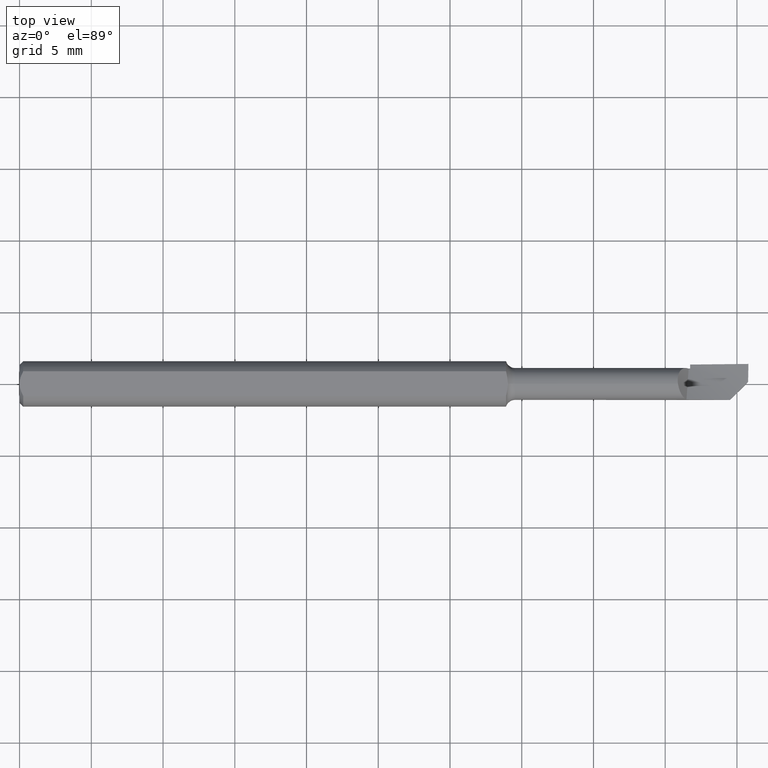
[diagram: clean part render]
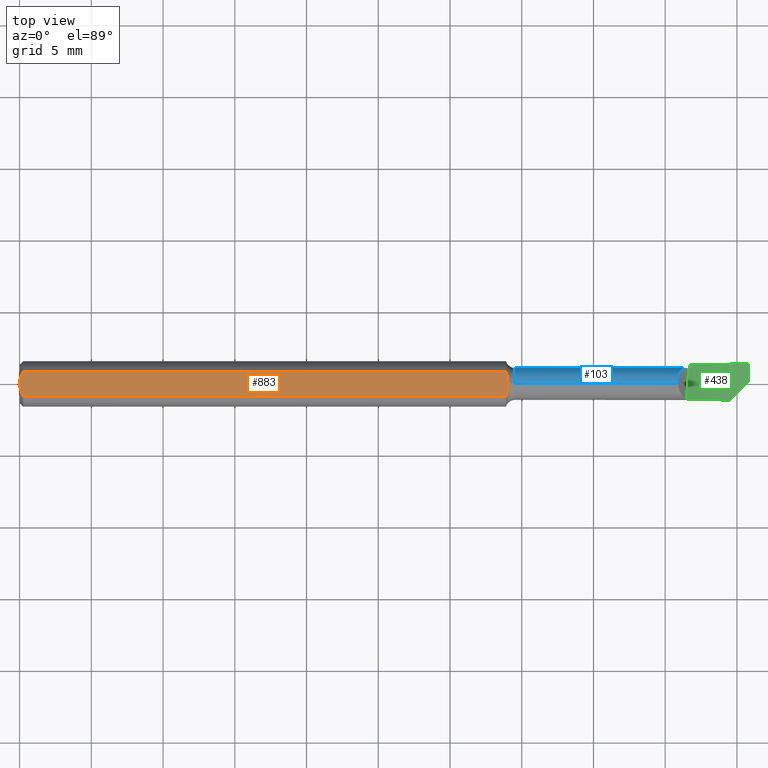
[diagram: same view with three faces highlighted in distinct colors, each labeled with its STEP entity id]
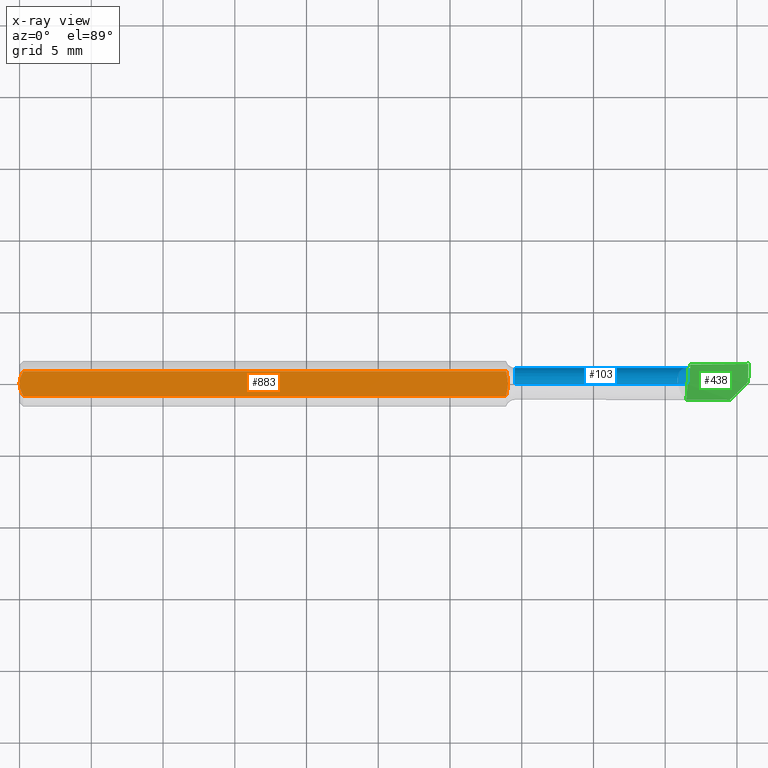
[diagram: x-ray of the same camera — body ghosted, the three highlighted faces saturated]
A machine part, top view with three faces highlighted in distinct colors.
The next image is the same camera in x-ray (body ghosted, the three faces saturated) — at least one of them is partly hidden behind the body in this view.
Their STEP definitions:

[orange] entity #883 — the highlighted planar face has unit normal (0, -0, 1).
#35 = CARTESIAN_POINT ( 'NONE',  ( 1.340190283510156455, 0.005749009410481263800, 0.05235000000000000070 ) ) ;
#37 = DIRECTION ( 'NONE',  ( 0.000000000000000000, -1.036675771730518732E-16, 1.000000000000000000 ) ) ;
#58 = B_SPLINE_CURVE_WITH_KNOTS ( 'NONE', 3,
 ( #439, #850, #526, #722, #592, #798 ),
 .UNSPECIFIED., .F., .F.,
 ( 4, 2, 4 ),
 ( 0.001820301466808375672, 0.002269751589838322255, 0.002719201712868268839 ),
 .UNSPECIFIED. ) ;
#59 = CARTESIAN_POINT ( 'NONE',  ( 1.337185933975787222, -0.02264023244491575673, 0.05234999999999998682 ) ) ;
#71 = ORIENTED_EDGE ( 'NONE', *, *, #487, .T. ) ;
#78 = ORIENTED_EDGE ( 'NONE', *, *, #307, .T. ) ;
#90 = VECTOR ( 'NONE', #217, 39.37007874015748143 ) ;
#102 = CARTESIAN_POINT ( 'NONE',  ( 1.334999999999999742, 0.03386738844375221380, 0.05234999999999997988 ) ) ;
#108 = CARTESIAN_POINT ( 'NONE',  ( 0.001063697276021675735, 0.01189177144351694949, 0.05234999999999998682 ) ) ;
#110 = VERTEX_POINT ( 'NONE', #744 ) ;
#128 = ORIENTED_EDGE ( 'NONE', *, *, #785, .T. ) ;
#137 = VERTEX_POINT ( 'NONE', #215 ) ;
#141 = PLANE ( 'NONE',  #206 ) ;
#162 = CARTESIAN_POINT ( 'NONE',  ( 1.340038537032256061, 0.007172298666276839818, 0.05234999999999997988 ) ) ;
#166 = LINE ( 'NONE', #251, #807 ) ;
#167 = CARTESIAN_POINT ( 'NONE',  ( 1.337186447480338103, 0.02263794260115008228, 0.05234999999999998682 ) ) ;
#184 = CARTESIAN_POINT ( 'NONE',  ( 0.004671770759546989976, 0.02323517832780104542, 0.05234999999999997988 ) ) ;
#192 = CARTESIAN_POINT ( 'NONE',  ( 1.340450532190047950, 0.000000000000000000, 0.05234999999999997988 ) ) ;
#206 = AXIS2_PLACEMENT_3D ( 'NONE', #761, #37, #525 ) ;
#212 = ORIENTED_EDGE ( 'NONE', *, *, #494, .T. ) ;
#213 = CARTESIAN_POINT ( 'NONE',  ( 1.334999999999999742, -0.03386738844375224156, 0.05234999999999997988 ) ) ;
#215 = CARTESIAN_POINT ( 'NONE',  ( 0.000000000000000000, -5.426997665009263557E-18, 0.05234999999999997988 ) ) ;
#217 = DIRECTION ( 'NONE',  ( -1.000000000000000000, -0.000000000000000000, -0.000000000000000000 ) ) ;
#224 = EDGE_CURVE ( 'NONE', #477, #110, #413, .T. ) ;
#226 = ORIENTED_EDGE ( 'NONE', *, *, #224, .F. ) ;
#251 = CARTESIAN_POINT ( 'NONE',  ( 0.000000000000000000, -0.03386738844375224156, 0.05234999999999997988 ) ) ;
#299 = CARTESIAN_POINT ( 'NONE',  ( 1.340450532190032629, 0.001376315575991609577, 0.05234999999999997988 ) ) ;
#304 = B_SPLINE_CURVE_WITH_KNOTS ( 'NONE', 3,
 ( #454, #602, #184, #108, #381, #865 ),
 .UNSPECIFIED., .F., .F.,
 ( 4, 2, 4 ),
 ( 0.0009229516234080532410, 0.001371626545108214565, 0.001820301466808375672 ),
 .UNSPECIFIED. ) ;
#307 = EDGE_CURVE ( 'NONE', #760, #137, #304, .T. ) ;
#314 = CARTESIAN_POINT ( 'NONE',  ( 1.340450532190031963, -0.005791053852450436627, 0.05234999999999997988 ) ) ;
#332 = CARTESIAN_POINT ( 'NONE',  ( 1.335845432516844289, -0.02822689702829193209, 0.05234999999999998682 ) ) ;
#377 = CARTESIAN_POINT ( 'NONE',  ( 1.335846881951975096, 0.02821722679885636104, 0.05235000000000000070 ) ) ;
#381 = CARTESIAN_POINT ( 'NONE',  ( -7.517250668112770884E-16, 0.005954997531773991229, 0.05234999999999998682 ) ) ;
#413 = B_SPLINE_CURVE_WITH_KNOTS ( 'NONE', 3,
 ( #102, #377, #167, #656, #518, #162, #35, #577, #299, #646 ),
 .UNSPECIFIED., .F., .F.,
 ( 4, 2, 2, 2, 4 ),
 ( 0.008280936228480533998, 0.008695135893795868584, 0.008902235726453534143, 0.009005785642782369524, 0.009109335559111203171 ),
 .UNSPECIFIED. ) ;
#420 = EDGE_CURVE ( 'NONE', #110, #867, #553, .T. ) ;
#439 = CARTESIAN_POINT ( 'NONE',  ( 0.000000000000000000, -5.426997665009263557E-18, 0.05234999999999997988 ) ) ;
#453 = CARTESIAN_POINT ( 'NONE',  ( 1.334999999999999742, 0.03386738844375221380, 0.05234999999999997988 ) ) ;
#454 = CARTESIAN_POINT ( 'NONE',  ( 0.01000000000000000021, 0.03386738844375223462, 0.05234999999999997988 ) ) ;
#467 = CARTESIAN_POINT ( 'NONE',  ( 1.339517550985716454, -0.01143235994865893397, 0.05234999999999997988 ) ) ;
#477 = VERTEX_POINT ( 'NONE', #453 ) ;
#486 = FACE_OUTER_BOUND ( 'NONE', #735, .T. ) ;
#487 = EDGE_CURVE ( 'NONE', #659, #867, #166, .T. ) ;
#489 = ORIENTED_EDGE ( 'NONE', *, *, #420, .F. ) ;
#494 = EDGE_CURVE ( 'NONE', #137, #659, #58, .T. ) ;
#508 = DIRECTION ( 'NONE',  ( 1.000000000000000000, 0.000000000000000000, 0.000000000000000000 ) ) ;
#518 = CARTESIAN_POINT ( 'NONE',  ( 1.339468223878736097, 0.01142363037413706393, 0.05234999999999997294 ) ) ;
#525 = DIRECTION ( 'NONE',  ( 0.000000000000000000, -1.000000000000000000, -1.036675771730518732E-16 ) ) ;
#526 = CARTESIAN_POINT ( 'NONE',  ( 0.001055043921633255690, -0.01186408073210960291, 0.05234999999999997988 ) ) ;
#553 = B_SPLINE_CURVE_WITH_KNOTS ( 'NONE', 3,
 ( #192, #314, #467, #59, #332, #802 ),
 .UNSPECIFIED., .F., .F.,
 ( 4, 2, 4 ),
 ( 6.229917496691179362E-17, 0.0004357017767854964212, 0.0008714035535709306092 ),
 .UNSPECIFIED. ) ;
#577 = CARTESIAN_POINT ( 'NONE',  ( 1.340396369055754766, 0.002886740526173730507, 0.05234999999999998682 ) ) ;
#592 = CARTESIAN_POINT ( 'NONE',  ( 0.007163450771350561574, -0.02864528976618616399, 0.05234999999999998682 ) ) ;
#602 = CARTESIAN_POINT ( 'NONE',  ( 0.007185421074056372141, 0.02868573718286561436, 0.05234999999999997988 ) ) ;
#646 = CARTESIAN_POINT ( 'NONE',  ( 1.340450532190047950, 0.000000000000000000, 0.05234999999999997988 ) ) ;
#656 = CARTESIAN_POINT ( 'NONE',  ( 1.338934866503850074, 0.01423318235558844111, 0.05234999999999997294 ) ) ;
#659 = VERTEX_POINT ( 'NONE', #736 ) ;
#706 = LINE ( 'NONE', #766, #90 ) ;
#722 = CARTESIAN_POINT ( 'NONE',  ( 0.004679365186781223734, -0.02325953974079656220, 0.05234999999999998682 ) ) ;
#735 = EDGE_LOOP ( 'NONE', ( #78, #212, #71, #489, #226, #128 ) ) ;
#736 = CARTESIAN_POINT ( 'NONE',  ( 0.01000000000000000021, -0.03386738844375224156, 0.05234999999999997988 ) ) ;
#744 = CARTESIAN_POINT ( 'NONE',  ( 1.340450532190047950, 0.000000000000000000, 0.05234999999999997988 ) ) ;
#760 = VERTEX_POINT ( 'NONE', #771 ) ;
#761 = CARTESIAN_POINT ( 'NONE',  ( 2.000787401574803059, 0.08234999999999999265, 0.05234999999999998682 ) ) ;
#766 = CARTESIAN_POINT ( 'NONE',  ( 0.000000000000000000, 0.03386738844375223462, 0.05234999999999997988 ) ) ;
#771 = CARTESIAN_POINT ( 'NONE',  ( 0.01000000000000000021, 0.03386738844375223462, 0.05234999999999997988 ) ) ;
#785 = EDGE_CURVE ( 'NONE', #477, #760, #706, .T. ) ;
#798 = CARTESIAN_POINT ( 'NONE',  ( 0.01000000000000000021, -0.03386738844375224156, 0.05234999999999997988 ) ) ;
#802 = CARTESIAN_POINT ( 'NONE',  ( 1.334999999999999742, -0.03386738844375224156, 0.05234999999999997988 ) ) ;
#807 = VECTOR ( 'NONE', #508, 39.37007874015748143 ) ;
#850 = CARTESIAN_POINT ( 'NONE',  ( -7.326168038673117461E-16, -0.005965286321680246008, 0.05234999999999997988 ) ) ;
#865 = CARTESIAN_POINT ( 'NONE',  ( 0.000000000000000000, -5.426997665009263557E-18, 0.05234999999999997988 ) ) ;
#867 = VERTEX_POINT ( 'NONE', #213 ) ;
#883 = ADVANCED_FACE ( 'NONE', ( #486 ), #141, .T. ) ;

[blue] entity #103 — the highlighted cylindrical surface (edge-blend (fillet) strip) has radius 1.1176 mm, axis along (-1, -0, -0).
#11 = CARTESIAN_POINT ( 'NONE',  ( 1.832649644870427030, 0.04381148599927516679, -0.006534799547832522391 ) ) ;
#14 = VERTEX_POINT ( 'NONE', #333 ) ;
#15 = CARTESIAN_POINT ( 'NONE',  ( 1.825184145557343873, 0.04368982805595991725, 0.005228637563037610847 ) ) ;
#40 = CARTESIAN_POINT ( 'NONE',  ( 1.840000000000000524, 0.04254520125568710814, -0.01122077760732640046 ) ) ;
#42 = EDGE_CURVE ( 'NONE', #531, #705, #712, .T. ) ;
#45 = CARTESIAN_POINT ( 'NONE',  ( 1.359099325716708107, 0.000000000000000000, 0.000000000000000000 ) ) ;
#49 = CIRCLE ( 'NONE', #550, 0.04399999999999996275 ) ;
#53 = CARTESIAN_POINT ( 'NONE',  ( 1.806503301658712202, 0.001021434485236766884, 0.04399108489073413897 ) ) ;
#72 = CARTESIAN_POINT ( 'NONE',  ( 1.822515809671329201, 0.04298960608165732639, 0.009481030022679172442 ) ) ;
#73 = AXIS2_PLACEMENT_3D ( 'NONE', #611, #329, #194 ) ;
#80 = EDGE_CURVE ( 'NONE', #378, #770, #680, .T. ) ;
#83 = CARTESIAN_POINT ( 'NONE',  ( 1.811257268910976936, 0.03336280251003857777, 0.02883926787080794488 ) ) ;
#98 = CARTESIAN_POINT ( 'NONE',  ( 1.806000000000000272, 0.01202158822878221338, 0.04206744494045958072 ) ) ;
#103 = ADVANCED_FACE ( 'NONE', ( #261 ), #267, .T. ) ;
#114 = CARTESIAN_POINT ( 'NONE',  ( 1.806000000000000050, 0.006042410246203819280, 0.04358313066332623192 ) ) ;
#119 = DIRECTION ( 'NONE',  ( -1.000000000000000000, -0.000000000000000000, -0.000000000000000000 ) ) ;
#143 = VERTEX_POINT ( 'NONE', #762 ) ;
#144 = CARTESIAN_POINT ( 'NONE',  ( 1.816472062690037470, 0.03947281274095175430, 0.01944051067236420710 ) ) ;
#145 = EDGE_CURVE ( 'NONE', #531, #770, #49, .T. ) ;
#146 = B_SPLINE_CURVE_WITH_KNOTS ( 'NONE', 3,
 ( #301, #98, #855, #114 ),
 .UNSPECIFIED., .F., .F.,
 ( 4, 4 ),
 ( 0.000000000000000000, 1.000000000000000000 ),
 .UNSPECIFIED. ) ;
#153 =( BOUNDED_CURVE ( )  B_SPLINE_CURVE ( 2, ( #534, #396, #40 ),
 .UNSPECIFIED., .F., .T. ) 
 B_SPLINE_CURVE_WITH_KNOTS ( ( 3, 3 ),
 ( 0.6960896133483621684, 0.7035278658483815617 ),
 .UNSPECIFIED. ) 
 CURVE ( )  GEOMETRIC_REPRESENTATION_ITEM ( )  RATIONAL_B_SPLINE_CURVE ( ( 0.9800704407896163595, 0.9800094700550632254, 0.9799569117201770707 ) ) 
 REPRESENTATION_ITEM ( '' )  );
#155 = CARTESIAN_POINT ( 'NONE',  ( 1.824487569580132584, 0.04355296984319946552, 0.006331378749687262275 ) ) ;
#160 = CARTESIAN_POINT ( 'NONE',  ( 1.825654579184348592, 0.04377235494399921850, 0.004485606868808031215 ) ) ;
#181 = CARTESIAN_POINT ( 'NONE',  ( 1.840000000000000524, 0.01304774452694784474, -0.04202090387842107727 ) ) ;
#183 = DIRECTION ( 'NONE',  ( -1.000000000000000000, -0.000000000000000000, -0.000000000000000000 ) ) ;
#194 = DIRECTION ( 'NONE',  ( 0.000000000000000000, 0.000000000000000000, 1.000000000000000000 ) ) ;
#216 = ORIENTED_EDGE ( 'NONE', *, *, #328, .F. ) ;
#222 = CARTESIAN_POINT ( 'NONE',  ( 1.835957477719311948, 0.04247873417013275921, -0.01146983623698223133 ) ) ;
#227 = CARTESIAN_POINT ( 'NONE',  ( 1.821695935261249844, 0.04267307383296666673, 0.01080308965078180874 ) ) ;
#247 = CARTESIAN_POINT ( 'NONE',  ( 1.840000000000000080, 0.000000000000000000, 0.000000000000000000 ) ) ;
#261 = FACE_OUTER_BOUND ( 'NONE', #578, .T. ) ;
#267 = CYLINDRICAL_SURFACE ( 'NONE', #73, 0.04399999999999996275 ) ;
#275 = DIRECTION ( 'NONE',  ( 1.000000000000000000, 0.000000000000000000, 0.000000000000000000 ) ) ;
#278 = AXIS2_PLACEMENT_3D ( 'NONE', #681, #183, #456 ) ;
#280 = EDGE_CURVE ( 'NONE', #558, #14, #146, .T. ) ;
#282 = B_SPLINE_CURVE_WITH_KNOTS ( 'NONE', 3,
 ( #832, #757, #351, #342, #83, #287, #691, #297, #418, #628, #144, #551, #623, #776, #292, #227, #72, #503, #155, #15, #160, #564, #433, #11, #222 ),
 .UNSPECIFIED., .F., .F.,
 ( 4, 2, 2, 2, 1, 1, 2, 2, 2, 2, 1, 2, 2, 4 ),
 ( 0.000000000000000000, 0.2500000000000549560, 0.3750000000000806022, 0.4375000000000955347, 0.4687500000001030287, 0.4843750000001090794, 0.4921875000001097455, 0.5000000000001104672, 0.6250000000001015854, 0.6875000000000942579, 0.7187500000000879297, 0.7343750000000847100, 0.7500000000000814904, 1.000000000000000000 ),
 .UNSPECIFIED. ) ;
#284 = CARTESIAN_POINT ( 'NONE',  ( 1.840000000000000080, 0.02851814440934258288, -0.03350694613729936211 ) ) ;
#287 = CARTESIAN_POINT ( 'NONE',  ( 1.813160508245734714, 0.03603691170435705665, 0.02528904872616571931 ) ) ;
#292 = CARTESIAN_POINT ( 'NONE',  ( 1.819381503443730397, 0.04160192991899874099, 0.01456266913863462319 ) ) ;
#297 = CARTESIAN_POINT ( 'NONE',  ( 1.814927803091667124, 0.03804389189905826169, 0.02211851865691565402 ) ) ;
#301 = CARTESIAN_POINT ( 'NONE',  ( 1.806000000000000050, 0.01502352246879054901, 0.04135569818815470339 ) ) ;
#308 = ORIENTED_EDGE ( 'NONE', *, *, #400, .T. ) ;
#319 = AXIS2_PLACEMENT_3D ( 'NONE', #247, #800, #397 ) ;
#323 = CARTESIAN_POINT ( 'NONE',  ( 0.000000000000000000, 5.388445916248349113E-18, -0.04399999999999996275 ) ) ;
#328 = EDGE_CURVE ( 'NONE', #664, #437, #694, .T. ) ;
#329 = DIRECTION ( 'NONE',  ( -1.000000000000000000, -0.000000000000000000, -0.000000000000000000 ) ) ;
#333 = CARTESIAN_POINT ( 'NONE',  ( 1.806000000000000050, 0.006042410246203819280, 0.04358313066332623192 ) ) ;
#334 = EDGE_CURVE ( 'NONE', #345, #664, #672, .T. ) ;
#335 = CARTESIAN_POINT ( 'NONE',  ( 1.359099325716708107, 0.000000000000000000, 0.04399999999999992806 ) ) ;
#342 = CARTESIAN_POINT ( 'NONE',  ( 1.810169704754772901, 0.03136967638997147784, 0.03098655298656198889 ) ) ;
#344 = B_SPLINE_CURVE_WITH_KNOTS ( 'NONE', 3,
 ( #684, #745, #53, #537, #402, #398, #810 ),
 .UNSPECIFIED., .F., .F.,
 ( 4, 2, 1, 4 ),
 ( 0.9133091907444047530, 0.9349818930583035925, 0.9566545953722023210, 1.000000000000000000 ),
 .UNSPECIFIED. ) ;
#345 = VERTEX_POINT ( 'NONE', #658 ) ;
#351 = CARTESIAN_POINT ( 'NONE',  ( 1.807450798487066690, 0.02493885775838036029, 0.03670075782472990295 ) ) ;
#356 = ORIENTED_EDGE ( 'NONE', *, *, #80, .T. ) ;
#362 = EDGE_CURVE ( 'NONE', #705, #437, #523, .T. ) ;
#378 = VERTEX_POINT ( 'NONE', #593 ) ;
#388 = ORIENTED_EDGE ( 'NONE', *, *, #280, .F. ) ;
#396 = CARTESIAN_POINT ( 'NONE',  ( 1.837978504615836339, 0.04251233249372542849, -0.01134540427239556955 ) ) ;
#397 = DIRECTION ( 'NONE',  ( 0.000000000000000000, 0.000000000000000000, 1.000000000000000000 ) ) ;
#398 = CARTESIAN_POINT ( 'NONE',  ( 1.806066406345927300, 0.005055551177186092329, 0.04371995081420762541 ) ) ;
#400 = EDGE_CURVE ( 'NONE', #143, #378, #153, .T. ) ;
#402 = CARTESIAN_POINT ( 'NONE',  ( 1.806196648552261141, 0.003557671217741856327, 0.04387635323605214299 ) ) ;
#415 = CARTESIAN_POINT ( 'NONE',  ( 1.840000000000000302, 0.000000000000000000, -0.04399999999999999745 ) ) ;
#418 = CARTESIAN_POINT ( 'NONE',  ( 1.815488579519248580, 0.03860551782770015039, 0.02113344978599027146 ) ) ;
#433 = CARTESIAN_POINT ( 'NONE',  ( 1.829375189563220871, 0.04427514283827316266, -0.001364418480959941199 ) ) ;
#437 = VERTEX_POINT ( 'NONE', #459 ) ;
#456 = DIRECTION ( 'NONE',  ( 0.000000000000000000, 0.000000000000000000, 1.000000000000000000 ) ) ;
#459 = CARTESIAN_POINT ( 'NONE',  ( 1.359099325716708107, 6.512059354466044426E-18, -0.04399999999999992806 ) ) ;
#481 = ORIENTED_EDGE ( 'NONE', *, *, #362, .T. ) ;
#503 = CARTESIAN_POINT ( 'NONE',  ( 1.823818216992804775, 0.04337937483282460621, 0.007397896961302856053 ) ) ;
#523 = LINE ( 'NONE', #323, #765 ) ;
#531 = VERTEX_POINT ( 'NONE', #181 ) ;
#534 = CARTESIAN_POINT ( 'NONE',  ( 1.835957477719311948, 0.04247873417013275921, -0.01146983623698223133 ) ) ;
#537 = CARTESIAN_POINT ( 'NONE',  ( 1.806374316927009005, 0.002038420778723301977, 0.04395570178031827507 ) ) ;
#550 = AXIS2_PLACEMENT_3D ( 'NONE', #617, #275, #693 ) ;
#551 = CARTESIAN_POINT ( 'NONE',  ( 1.816673149264879550, 0.03963991880519358857, 0.01909746679542105585 ) ) ;
#558 = VERTEX_POINT ( 'NONE', #730 ) ;
#563 = ORIENTED_EDGE ( 'NONE', *, *, #334, .F. ) ;
#564 = CARTESIAN_POINT ( 'NONE',  ( 1.825931518381612051, 0.04381444014808615062, 0.004049318782235674340 ) ) ;
#578 = EDGE_LOOP ( 'NONE', ( #779, #481, #216, #563, #605, #388, #844, #308, #356, #631 ) ) ;
#593 = CARTESIAN_POINT ( 'NONE',  ( 1.840000000000000524, 0.04254520125568710814, -0.01122077760732640046 ) ) ;
#598 = DIRECTION ( 'NONE',  ( -1.000000000000000000, -0.000000000000000000, -0.000000000000000000 ) ) ;
#603 = EDGE_CURVE ( 'NONE', #345, #14, #344, .T. ) ;
#605 = ORIENTED_EDGE ( 'NONE', *, *, #603, .T. ) ;
#607 = DIRECTION ( 'NONE',  ( -1.000000000000000000, -0.000000000000000000, -0.000000000000000000 ) ) ;
#611 = CARTESIAN_POINT ( 'NONE',  ( 0.000000000000000000, 0.000000000000000000, 0.000000000000000000 ) ) ;
#617 = CARTESIAN_POINT ( 'NONE',  ( 1.840000000000000080, 0.000000000000000000, 0.000000000000000000 ) ) ;
#623 = CARTESIAN_POINT ( 'NONE',  ( 1.816804123914292468, 0.03974618859559413825, 0.01887482012635703990 ) ) ;
#628 = CARTESIAN_POINT ( 'NONE',  ( 1.816172556992620812, 0.03921905190321879620, 0.01995294309135630176 ) ) ;
#631 = ORIENTED_EDGE ( 'NONE', *, *, #145, .F. ) ;
#654 = AXIS2_PLACEMENT_3D ( 'NONE', #45, #607, #727 ) ;
#658 = CARTESIAN_POINT ( 'NONE',  ( 1.806645572135293198, -1.605047027801943588E-06, 0.04400469612014611120 ) ) ;
#664 = VERTEX_POINT ( 'NONE', #335 ) ;
#672 = LINE ( 'NONE', #875, #874 ) ;
#680 = CIRCLE ( 'NONE', #319, 0.04399999999999999745 ) ;
#681 = CARTESIAN_POINT ( 'NONE',  ( 1.840000000000000080, 0.000000000000000000, 0.000000000000000000 ) ) ;
#684 = CARTESIAN_POINT ( 'NONE',  ( 1.806645572135293198, -1.605047027801943588E-06, 0.04400469612014611120 ) ) ;
#691 = CARTESIAN_POINT ( 'NONE',  ( 1.813840236874062484, 0.03687567909233643859, 0.02405100008509548221 ) ) ;
#693 = DIRECTION ( 'NONE',  ( 0.000000000000000000, 0.000000000000000000, 1.000000000000000000 ) ) ;
#694 = CIRCLE ( 'NONE', #654, 0.04399999999999992806 ) ;
#705 = VERTEX_POINT ( 'NONE', #415 ) ;
#712 = CIRCLE ( 'NONE', #278, 0.04399999999999999745 ) ;
#727 = DIRECTION ( 'NONE',  ( 0.000000000000000000, 0.000000000000000000, 1.000000000000000000 ) ) ;
#730 = CARTESIAN_POINT ( 'NONE',  ( 1.806000000000000050, 0.01502352246879054901, 0.04135569818815470339 ) ) ;
#742 = EDGE_CURVE ( 'NONE', #558, #143, #282, .T. ) ;
#745 = CARTESIAN_POINT ( 'NONE',  ( 1.806584803989185861, 0.0004307009242537059653, 0.04400001224264010746 ) ) ;
#757 = CARTESIAN_POINT ( 'NONE',  ( 1.806363242576469519, 0.02005489588577210117, 0.03952792865504635433 ) ) ;
#762 = CARTESIAN_POINT ( 'NONE',  ( 1.835957477719311948, 0.04247873417013275921, -0.01146983623698223133 ) ) ;
#765 = VECTOR ( 'NONE', #119, 39.37007874015748143 ) ;
#770 = VERTEX_POINT ( 'NONE', #284 ) ;
#776 = CARTESIAN_POINT ( 'NONE',  ( 1.818032137449004493, 0.04072744428580667847, 0.01679199236951776572 ) ) ;
#779 = ORIENTED_EDGE ( 'NONE', *, *, #42, .T. ) ;
#800 = DIRECTION ( 'NONE',  ( -1.000000000000000000, -0.000000000000000000, -0.000000000000000000 ) ) ;
#810 = CARTESIAN_POINT ( 'NONE',  ( 1.806000000000000050, 0.006042410246203819280, 0.04358313066332623192 ) ) ;
#832 = CARTESIAN_POINT ( 'NONE',  ( 1.806000000000000050, 0.01502352246879054901, 0.04135569818815470339 ) ) ;
#844 = ORIENTED_EDGE ( 'NONE', *, *, #742, .T. ) ;
#855 = CARTESIAN_POINT ( 'NONE',  ( 1.806000000000000272, 0.009027440795395252557, 0.04281001014657273562 ) ) ;
#874 = VECTOR ( 'NONE', #598, 39.37007874015748143 ) ;
#875 = CARTESIAN_POINT ( 'NONE',  ( 0.000000000000000000, 0.000000000000000000, 0.04399999999999996275 ) ) ;

[green] entity #438 — the highlighted face is a freeform B-spline surface patch.
#40 = CARTESIAN_POINT ( 'NONE',  ( 1.840000000000000524, 0.04254520125568710814, -0.01122077760732640046 ) ) ;
#51 = CARTESIAN_POINT ( 'NONE',  ( 1.865277777777778034, -0.1104102467735696008, 0.03209960247531515320 ) ) ;
#54 = CARTESIAN_POINT ( 'NONE',  ( 1.730555555555556291, -0.03801979288879211993, 0.007770946227939592478 ) ) ;
#56 = CARTESIAN_POINT ( 'NONE',  ( 1.949539431800300759, -0.04394692464801779747, 0.002160512434919499136 ) ) ;
#57 =( BOUNDED_CURVE ( )  B_SPLINE_CURVE ( 3, ( #778, #782, #441, #715 ),
 .UNSPECIFIED., .F., .F. ) 
 B_SPLINE_CURVE_WITH_KNOTS ( ( 4, 4 ),
 ( 0.002575251786124032813, 0.002856139665554451555 ),
 .UNSPECIFIED. ) 
 CURVE ( )  GEOMETRIC_REPRESENTATION_ITEM ( )  RATIONAL_B_SPLINE_CURVE ( ( 0.9799569117201767376, 0.9802757602278233673, 0.9806347456847663846, 0.9810338680910057896 ) ) 
 REPRESENTATION_ITEM ( '' )  );
#101 = CARTESIAN_POINT ( 'NONE',  ( 2.000000000000000000, 0.05500000000000000028, 0.000000000000000000 ) ) ;
#109 = EDGE_CURVE ( 'NONE', #753, #519, #737, .T. ) ;
#126 = CARTESIAN_POINT ( 'NONE',  ( 1.595833333333334325, -0.03647405557781263630, 0.01533355323873351883 ) ) ;
#133 = CARTESIAN_POINT ( 'NONE',  ( 1.982541513044761672, -0.01094484340355666996, -0.003318865561971373352 ) ) ;
#143 = VERTEX_POINT ( 'NONE', #762 ) ;
#153 =( BOUNDED_CURVE ( )  B_SPLINE_CURVE ( 2, ( #534, #396, #40 ),
 .UNSPECIFIED., .F., .T. ) 
 B_SPLINE_CURVE_WITH_KNOTS ( ( 3, 3 ),
 ( 0.6960896133483621684, 0.7035278658483815617 ),
 .UNSPECIFIED. ) 
 CURVE ( )  GEOMETRIC_REPRESENTATION_ITEM ( )  RATIONAL_B_SPLINE_CURVE ( ( 0.9800704407896163595, 0.9800094700550632254, 0.9799569117201770707 ) ) 
 REPRESENTATION_ITEM ( '' )  );
#182 = FACE_OUTER_BOUND ( 'NONE', #815, .T. ) ;
#198 = CARTESIAN_POINT ( 'NONE',  ( 1.999364826860025479, 0.02215196039851312360, -0.002838299606482884603 ) ) ;
#199 = CARTESIAN_POINT ( 'NONE',  ( 1.999200506997811821, 0.005714150549493749419, -0.003008259690230487022 ) ) ;
#207 = B_SPLINE_CURVE_WITH_KNOTS ( 'NONE', 3,
 ( #199, #133, #338, #56 ),
 .UNSPECIFIED., .F., .F.,
 ( 4, 4 ),
 ( 2.861133039103668055E-05, 0.001817312501967736438 ),
 .UNSPECIFIED. ) ;
#225 = CARTESIAN_POINT ( 'NONE',  ( 1.832012808589526198, -0.01525372083031852066, -6.782912152967197710E-05 ) ) ;
#232 = CARTESIAN_POINT ( 'NONE',  ( 1.829992566228702877, -0.04291472308783400580, 0.009712185248157291506 ) ) ;
#253 = EDGE_CURVE ( 'NONE', #143, #291, #695, .T. ) ;
#264 = EDGE_CURVE ( 'NONE', #378, #756, #57, .T. ) ;
#291 = VERTEX_POINT ( 'NONE', #719 ) ;
#318 = CARTESIAN_POINT ( 'NONE',  ( 1.730555555555556291, -0.1000660139471911819, 0.05200397020379683710 ) ) ;
#322 = CARTESIAN_POINT ( 'NONE',  ( 1.840000000000000080, 0.05351427328620204926, -0.01269734439360004942 ) ) ;
#338 = CARTESIAN_POINT ( 'NONE',  ( 1.965987986767433249, -0.02749836968088575570, -0.001592746354514731292 ) ) ;
#339 = CARTESIAN_POINT ( 'NONE',  ( 2.000000000000000000, 0.1123499999999999360, 0.009751798000210767925 ) ) ;
#358 = CARTESIAN_POINT ( 'NONE',  ( 1.865277777777778034, 0.1142897532264300492, -0.01259600647489379256 ) ) ;
#359 = CARTESIAN_POINT ( 'NONE',  ( 1.835957477719311948, 0.04247873417013275921, -0.01146983623698223133 ) ) ;
#372 = CARTESIAN_POINT ( 'NONE',  ( 1.949539431800300759, -0.04394692464801779747, 0.002160512434919499136 ) ) ;
#374 = ORIENTED_EDGE ( 'NONE', *, *, #666, .F. ) ;
#378 = VERTEX_POINT ( 'NONE', #593 ) ;
#393 = CARTESIAN_POINT ( 'NONE',  ( 1.829992566228702877, -0.04291472308783400580, 0.009712185248157291506 ) ) ;
#396 = CARTESIAN_POINT ( 'NONE',  ( 1.837978504615836339, 0.04251233249372542849, -0.01134540427239556955 ) ) ;
#400 = EDGE_CURVE ( 'NONE', #143, #378, #153, .T. ) ;
#408 = CARTESIAN_POINT ( 'NONE',  ( 1.730555555555556291, 0.1075297170080946885, -0.03398499704863858217 ) ) ;
#430 = CARTESIAN_POINT ( 'NONE',  ( 1.461111111111112359, 0.02172896300873220637, -0.03215189610504084333 ) ) ;
#431 = CARTESIAN_POINT ( 'NONE',  ( 1.833984813398985558, 0.01345421080761294470, -0.007187838752243777031 ) ) ;
#438 = ADVANCED_FACE ( 'NONE', ( #182 ), #768, .T. ) ;
#441 = CARTESIAN_POINT ( 'NONE',  ( 1.840000000000000968, 0.04985321324318506275, -0.01224571845991804554 ) ) ;
#462 = CARTESIAN_POINT ( 'NONE',  ( 1.461111111111112359, -0.07254788437159807868, 0.08633900936101877865 ) ) ;
#472 = CARTESIAN_POINT ( 'NONE',  ( 1.999200506997811821, 0.005714150549493749419, -0.003008259690230487022 ) ) ;
#497 = ORIENTED_EDGE ( 'NONE', *, *, #676, .F. ) ;
#498 = CARTESIAN_POINT ( 'NONE',  ( 1.840000000000000080, 0.05351427328620203538, -0.01269734439360004942 ) ) ;
#513 = CARTESIAN_POINT ( 'NONE',  ( 1.920749231091393616, 0.05500000000000002803, -0.006435595249347012339 ) ) ;
#517 = EDGE_CURVE ( 'NONE', #756, #753, #522, .T. ) ;
#519 = VERTEX_POINT ( 'NONE', #653 ) ;
#522 =( BOUNDED_CURVE ( )  B_SPLINE_CURVE ( 2, ( #322, #513, #101 ),
 .UNSPECIFIED., .F., .F. ) 
 B_SPLINE_CURVE_WITH_KNOTS ( ( 3, 3 ),
 ( 0.7035278658487924552, 1.000000000000000000 ),
 .UNSPECIFIED. ) 
 CURVE ( )  GEOMETRIC_REPRESENTATION_ITEM ( )  RATIONAL_B_SPLINE_CURVE ( ( 0.9810338680910000164, 0.9789367080174533609, 0.9902185229795289478 ) ) 
 REPRESENTATION_ITEM ( '' )  );
#530 = CARTESIAN_POINT ( 'NONE',  ( 1.595833333333334325, -0.08972178112081276302, 0.07190833793227849324 ) ) ;
#534 = CARTESIAN_POINT ( 'NONE',  ( 1.835957477719311948, 0.04247873417013275921, -0.01146983623698223133 ) ) ;
#543 = CARTESIAN_POINT ( 'NONE',  ( 1.595833333333334325, 0.1007696807897593000, -0.05537398762238337352 ) ) ;
#561 = CARTESIAN_POINT ( 'NONE',  ( 1.730555555555556291, 0.03237894214498534401, -0.02138916459696088568 ) ) ;
#569 = VERTEX_POINT ( 'NONE', #372 ) ;
#574 = ORIENTED_EDGE ( 'NONE', *, *, #264, .F. ) ;
#593 = CARTESIAN_POINT ( 'NONE',  ( 1.840000000000000524, 0.04254520125568710814, -0.01122077760732640046 ) ) ;
#610 = CARTESIAN_POINT ( 'NONE',  ( 1.461111111111112359, -0.03215189610504074619, 0.02172896300873198086 ) ) ;
#615 = CARTESIAN_POINT ( 'NONE',  ( 1.949539431800300759, -0.04394692464801779747, 0.002160512434919499136 ) ) ;
#639 = CARTESIAN_POINT ( 'NONE',  ( 1.865277777777778034, 0.03663351151124000227, -0.01494859256165287191 ) ) ;
#644 = CARTESIAN_POINT ( 'NONE',  ( 1.999999999999999778, 0.03809952085550591394, -0.007370126672253536106 ) ) ;
#651 = ORIENTED_EDGE ( 'NONE', *, *, #109, .F. ) ;
#653 = CARTESIAN_POINT ( 'NONE',  ( 1.999200506997811821, 0.005714150549493749419, -0.003008259690230487022 ) ) ;
#666 = EDGE_CURVE ( 'NONE', #519, #569, #207, .T. ) ;
#668 = CARTESIAN_POINT ( 'NONE',  ( 2.000000000000000000, -0.1123499999999997279, 0.009751798000210630882 ) ) ;
#676 = EDGE_CURVE ( 'NONE', #569, #291, #817, .T. ) ;
#690 = ORIENTED_EDGE ( 'NONE', *, *, #517, .F. ) ;
#695 = B_SPLINE_CURVE_WITH_KNOTS ( 'NONE', 3,
 ( #359, #431, #225, #232 ),
 .UNSPECIFIED., .F., .F.,
 ( 4, 4 ),
 ( 0.000000000000000000, 1.000000000000000000 ),
 .UNSPECIFIED. ) ;
#702 = CARTESIAN_POINT ( 'NONE',  ( 1.595833333333334325, 0.02812437277873068575, -0.02782973663226890118 ) ) ;
#711 = CARTESIAN_POINT ( 'NONE',  ( 2.000000000000000000, 0.05500000000000000028, 0.000000000000000000 ) ) ;
#715 = CARTESIAN_POINT ( 'NONE',  ( 1.840000000000000080, 0.05351427328620203538, -0.01269734439360004942 ) ) ;
#716 = ORIENTED_EDGE ( 'NONE', *, *, #253, .T. ) ;
#719 = CARTESIAN_POINT ( 'NONE',  ( 1.829992566228702877, -0.04291472308783400580, 0.009712185248157291506 ) ) ;
#737 = B_SPLINE_CURVE_WITH_KNOTS ( 'NONE', 3,
 ( #870, #876, #198, #472 ),
 .UNSPECIFIED., .F., .F.,
 ( 4, 4 ),
 ( 8.674036163119721574E-19, 0.001252690469991828322 ),
 .UNSPECIFIED. ) ;
#739 = CARTESIAN_POINT ( 'NONE',  ( 1.865277777777778034, -0.03956553019977161051, 0.0002083392171456643091 ) ) ;
#753 = VERTEX_POINT ( 'NONE', #711 ) ;
#756 = VERTEX_POINT ( 'NONE', #498 ) ;
#762 = CARTESIAN_POINT ( 'NONE',  ( 1.835957477719311948, 0.04247873417013275921, -0.01146983623698223133 ) ) ;
#768 =( BOUNDED_SURFACE ( )  B_SPLINE_SURFACE ( 3, 2, ( 
 ( #668, #51, #318, #530, #462 ),
 ( #861, #739, #54, #126, #610 ),
 ( #644, #639, #561, #702, #430 ),
 ( #339, #358, #408, #543, #777 ) ),
 .UNSPECIFIED., .F., .F., .T. ) 
 B_SPLINE_SURFACE_WITH_KNOTS ( ( 4, 4 ),
 ( 3, 2, 3 ),
 ( 0.000000000000000000, 1.000000000000000000 ),
 ( 0.000000000000000000, 0.5000000000000000000, 1.000000000000000000 ),
 .UNSPECIFIED. ) 
 GEOMETRIC_REPRESENTATION_ITEM ( )  RATIONAL_B_SPLINE_SURFACE ( (
 ( 1.000000000000000000, 0.9807852804032304306, 1.000000000000000000, 0.9807852804032304306, 1.000000000000000000),
 ( 0.9829519941216796619, 0.9640648471775461470, 0.9829519941216796619, 0.9640648471775461470, 0.9829519941216796619),
 ( 0.9829519941216796619, 0.9640648471775461470, 0.9829519941216796619, 0.9640648471775461470, 0.9829519941216796619),
 ( 1.000000000000000000, 0.9807852804032304306, 1.000000000000000000, 0.9807852804032304306, 1.000000000000000000) ) ) 
 REPRESENTATION_ITEM ( '' )  SURFACE ( )  );
#777 = CARTESIAN_POINT ( 'NONE',  ( 1.461111111111112359, 0.08633900936101901458, -0.07254788437159812031 ) ) ;
#778 = CARTESIAN_POINT ( 'NONE',  ( 1.840000000000000524, 0.04254520125568710814, -0.01122077760732640046 ) ) ;
#782 = CARTESIAN_POINT ( 'NONE',  ( 1.840000000000000524, 0.04619670446960698340, -0.01175352423322569527 ) ) ;
#815 = EDGE_LOOP ( 'NONE', ( #651, #690, #574, #821, #716, #497, #374 ) ) ;
#817 =( BOUNDED_CURVE ( )  B_SPLINE_CURVE ( 2, ( #615, #872, #393 ),
 .UNSPECIFIED., .F., .F. ) 
 B_SPLINE_CURVE_WITH_KNOTS ( ( 3, 3 ),
 ( 0.09455965140952782289, 0.3148910267384269490 ),
 .UNSPECIFIED. ) 
 CURVE ( )  GEOMETRIC_REPRESENTATION_ITEM ( )  RATIONAL_B_SPLINE_CURVE ( ( 0.9833022579123034124, 0.9780948911032535387, 0.9802687885623562192 ) ) 
 REPRESENTATION_ITEM ( '' )  );
#821 = ORIENTED_EDGE ( 'NONE', *, *, #400, .F. ) ;
#861 = CARTESIAN_POINT ( 'NONE',  ( 1.999999999999999778, -0.03809952085550567802, -0.007370126672253623709 ) ) ;
#870 = CARTESIAN_POINT ( 'NONE',  ( 2.000000000000000000, 0.05500000000000000028, 0.000000000000000000 ) ) ;
#872 = CARTESIAN_POINT ( 'NONE',  ( 1.889951090927360022, -0.04375909165793846062, 0.005981218174915104921 ) ) ;
#876 = CARTESIAN_POINT ( 'NONE',  ( 1.999629894193607260, 0.03858070557514532706, -0.001847204213407274134 ) ) ;